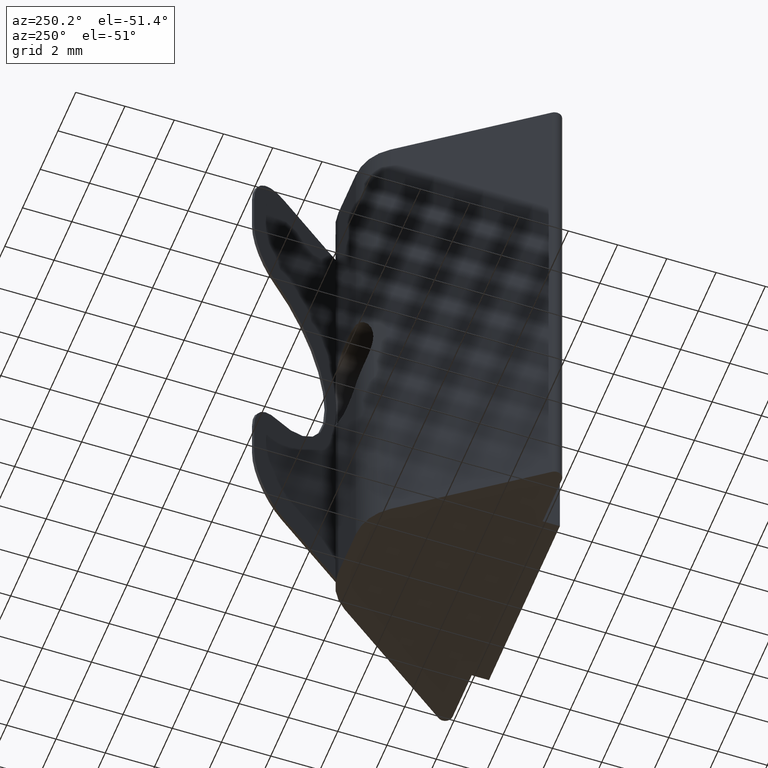
[diagram: clean part render]
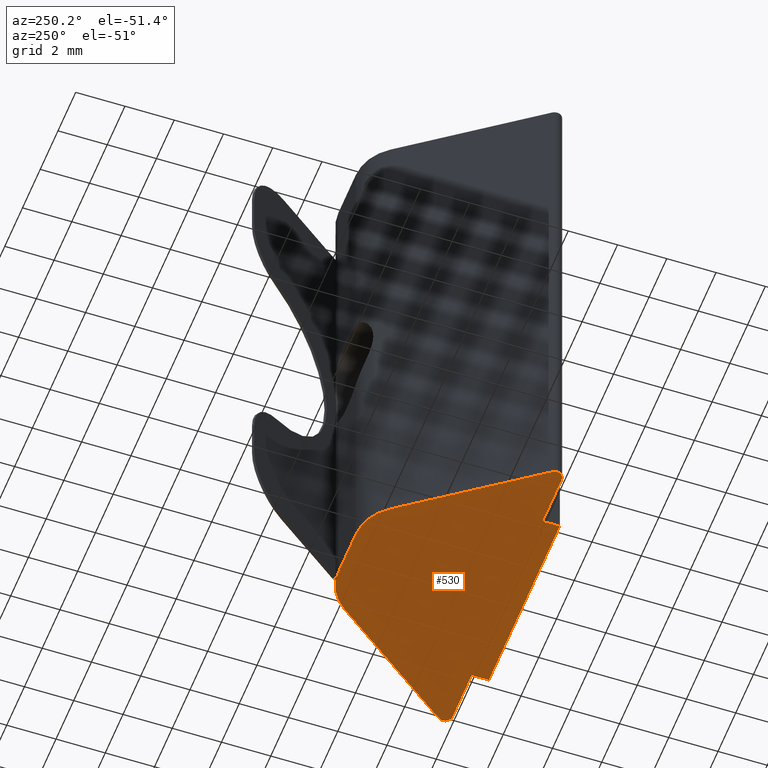
[diagram: same view with one face highlighted and labeled with its STEP entity id]
A machine part, auxiliary view. The second image highlights one B-rep face of the part: STEP entity #530.
In plain terms, the highlighted planar face has unit normal (0, 0, 1).
Its self-contained STEP definition (entity closure, byte-faithful):
#27=PLANE('',#572);
#51=FACE_OUTER_BOUND('',#79,.T.);
#79=EDGE_LOOP('',(#426,#427,#428,#429,#430,#431,#432,#433,#434,#435,#436,
#437));
#122=LINE('',#831,#176);
#124=LINE('',#835,#178);
#125=LINE('',#837,#179);
#126=LINE('',#839,#180);
#127=LINE('',#841,#181);
#128=LINE('',#843,#182);
#129=LINE('',#847,#183);
#130=LINE('',#851,#184);
#176=VECTOR('',#676,6.44424747615688);
#178=VECTOR('',#680,2.15920210335143);
#179=VECTOR('',#681,0.699999999999999);
#180=VECTOR('',#682,8.);
#181=VECTOR('',#683,0.699999999999999);
#182=VECTOR('',#684,2.15920210335143);
#183=VECTOR('',#687,6.44424747615688);
#184=VECTOR('',#690,1.96884855750627);
#214=CIRCLE('',#570,0.3);
#215=CIRCLE('',#573,0.3);
#216=CIRCLE('',#574,2.);
#217=CIRCLE('',#575,2.);
#248=VERTEX_POINT('',#821);
#249=VERTEX_POINT('',#823);
#251=VERTEX_POINT('',#830);
#252=VERTEX_POINT('',#834);
#253=VERTEX_POINT('',#836);
#254=VERTEX_POINT('',#838);
#255=VERTEX_POINT('',#840);
#256=VERTEX_POINT('',#842);
#257=VERTEX_POINT('',#844);
#258=VERTEX_POINT('',#846);
#259=VERTEX_POINT('',#848);
#260=VERTEX_POINT('',#850);
#310=EDGE_CURVE('',#248,#249,#214,.T.);
#314=EDGE_CURVE('',#249,#251,#122,.T.);
#316=EDGE_CURVE('',#252,#248,#124,.T.);
#317=EDGE_CURVE('',#253,#252,#125,.T.);
#318=EDGE_CURVE('',#254,#253,#126,.T.);
#319=EDGE_CURVE('',#255,#254,#127,.T.);
#320=EDGE_CURVE('',#256,#255,#128,.T.);
#321=EDGE_CURVE('',#257,#256,#215,.T.);
#322=EDGE_CURVE('',#258,#257,#129,.T.);
#323=EDGE_CURVE('',#259,#258,#216,.T.);
#324=EDGE_CURVE('',#260,#259,#130,.T.);
#325=EDGE_CURVE('',#251,#260,#217,.T.);
#426=ORIENTED_EDGE('',*,*,#310,.F.);
#427=ORIENTED_EDGE('',*,*,#316,.F.);
#428=ORIENTED_EDGE('',*,*,#317,.F.);
#429=ORIENTED_EDGE('',*,*,#318,.F.);
#430=ORIENTED_EDGE('',*,*,#319,.F.);
#431=ORIENTED_EDGE('',*,*,#320,.F.);
#432=ORIENTED_EDGE('',*,*,#321,.F.);
#433=ORIENTED_EDGE('',*,*,#322,.F.);
#434=ORIENTED_EDGE('',*,*,#323,.F.);
#435=ORIENTED_EDGE('',*,*,#324,.F.);
#436=ORIENTED_EDGE('',*,*,#325,.F.);
#437=ORIENTED_EDGE('',*,*,#314,.F.);
#530=ADVANCED_FACE('',(#51),#27,.F.);
#570=AXIS2_PLACEMENT_3D('',#824,#669,#670);
#572=AXIS2_PLACEMENT_3D('',#833,#678,#679);
#573=AXIS2_PLACEMENT_3D('',#845,#685,#686);
#574=AXIS2_PLACEMENT_3D('',#849,#688,#689);
#575=AXIS2_PLACEMENT_3D('',#852,#691,#692);
#669=DIRECTION('center_axis',(0.,0.,1.));
#670=DIRECTION('ref_axis',(0.891632376414828,-0.452760096882274,0.));
#676=DIRECTION('',(-0.59001658934231,0.807391122257898,0.));
#678=DIRECTION('center_axis',(0.,0.,1.));
#679=DIRECTION('ref_axis',(1.,0.,0.));
#680=DIRECTION('',(1.,-6.30808536718839E-18,0.));
#681=DIRECTION('',(0.,1.,0.));
#682=DIRECTION('',(1.,0.,0.));
#683=DIRECTION('',(-7.93016446160827E-16,-1.,0.));
#684=DIRECTION('',(1.,6.30808536718839E-18,0.));
#685=DIRECTION('center_axis',(0.,0.,1.));
#686=DIRECTION('ref_axis',(-0.89163237641483,-0.452760096882271,0.));
#687=DIRECTION('',(-0.59001658934231,-0.807391122257898,0.));
#688=DIRECTION('center_axis',(0.,0.,1.));
#689=DIRECTION('ref_axis',(-0.452760096882273,0.891632376414829,0.));
#690=DIRECTION('',(-1.,0.,0.));
#691=DIRECTION('center_axis',(0.,0.,1.));
#692=DIRECTION('ref_axis',(0.452760096882273,0.891632376414829,0.));
#821=CARTESIAN_POINT('',(6.15920210335143,3.72680356681451E-18,0.));
#823=CARTESIAN_POINT('',(6.4014194400288,0.477004976802693,0.));
#824=CARTESIAN_POINT('Origin',(6.15920210335143,0.3,0.));
#830=CARTESIAN_POINT('',(2.59920652326893,5.68003317868462,0.));
#831=CARTESIAN_POINT('',(6.75,0.,0.));
#833=CARTESIAN_POINT('Origin',(-1.18948245321398E-16,2.06389923886447,0.));
#834=CARTESIAN_POINT('',(4.,1.73472347597681E-17,0.));
#835=CARTESIAN_POINT('',(4.,1.73472347597681E-17,0.));
#836=CARTESIAN_POINT('',(4.,-0.699999999999999,0.));
#837=CARTESIAN_POINT('',(4.,-0.699999999999999,0.));
#838=CARTESIAN_POINT('',(-4.,-0.699999999999999,0.));
#839=CARTESIAN_POINT('',(-4.,-0.699999999999999,0.));
#840=CARTESIAN_POINT('',(-4.,1.73472347597681E-17,0.));
#841=CARTESIAN_POINT('',(-4.,1.73472347597681E-17,0.));
#842=CARTESIAN_POINT('',(-6.15920210335143,3.7268035668145E-18,0.));
#843=CARTESIAN_POINT('',(-6.75,0.,0.));
#844=CARTESIAN_POINT('',(-6.4014194400288,0.477004976802693,0.));
#845=CARTESIAN_POINT('Origin',(-6.15920210335143,0.3,0.));
#846=CARTESIAN_POINT('',(-2.59920652326893,5.68003317868462,0.));
#847=CARTESIAN_POINT('',(-2.,6.5,0.));
#848=CARTESIAN_POINT('',(-0.984424278753134,6.5,0.));
#849=CARTESIAN_POINT('Origin',(-0.984424278753134,4.5,0.));
#850=CARTESIAN_POINT('',(0.984424278753135,6.5,0.));
#851=CARTESIAN_POINT('',(2.,6.5,0.));
#852=CARTESIAN_POINT('Origin',(0.984424278753135,4.5,0.));